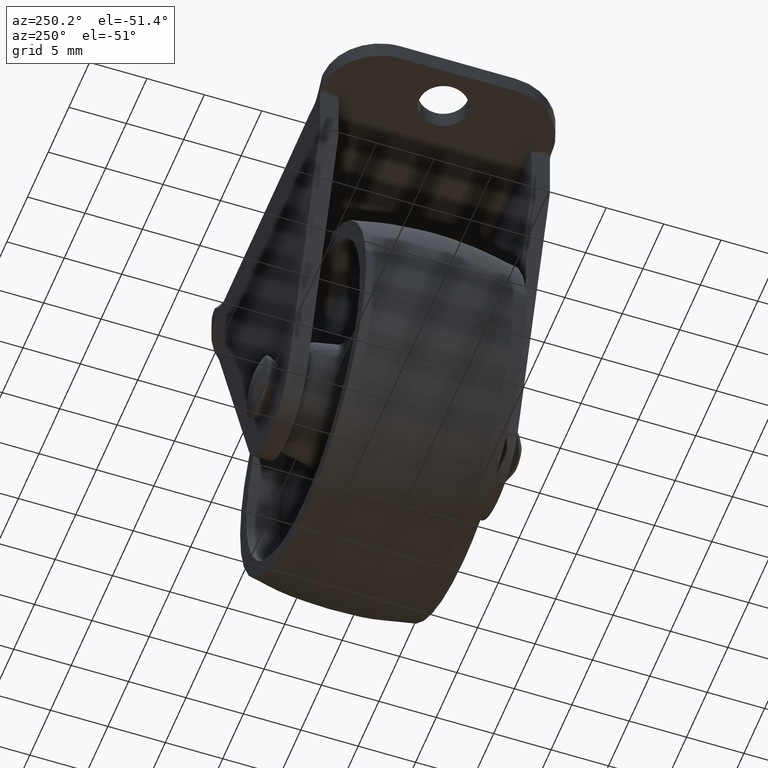
[diagram: clean part render]
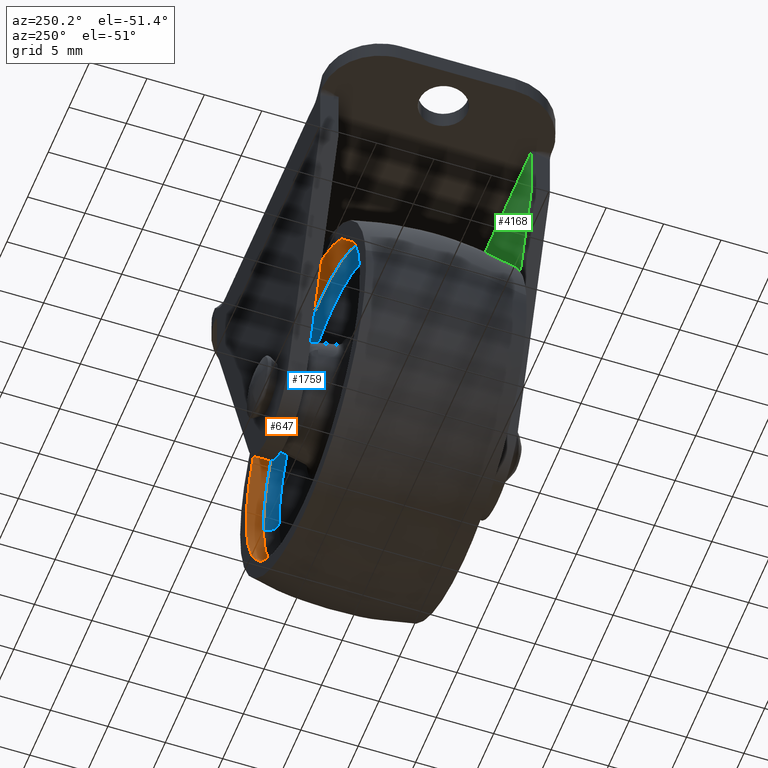
[diagram: same view with three faces highlighted in distinct colors, each labeled with its STEP entity id]
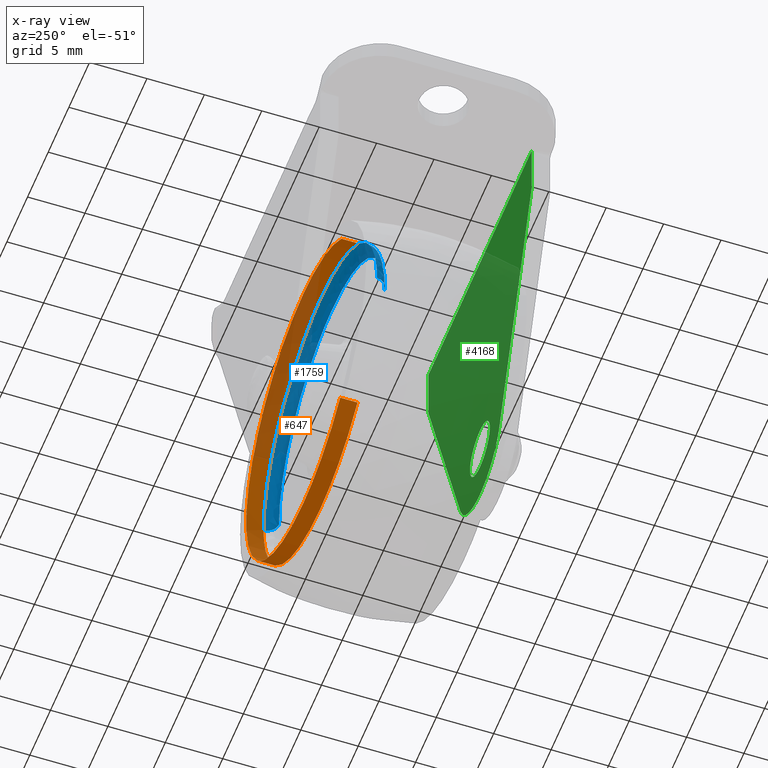
[diagram: x-ray of the same camera — body ghosted, the three highlighted faces saturated]
A machine part, auxiliary view with three faces highlighted in distinct colors.
The next image is the same camera in x-ray (body ghosted, the three faces saturated) — at least one of them is partly hidden behind the body in this view.
Their STEP definitions:

[orange] entity #647 — the highlighted face is a freeform B-spline surface patch.
#500=CARTESIAN_POINT('',(-8.997170283787186,7.037500000000621,-10.397760666823247));
#501=CARTESIAN_POINT('',(0.261949297203739,7.037500000000621,-18.409666135462533));
#502=CARTESIAN_POINT('',(9.289365354715326,7.037500000000621,-10.137563381139200));
#503=CARTESIAN_POINT('',(19.426928735854528,7.037500000000621,-0.848198026423875));
#504=CARTESIAN_POINT('',(10.137563381139200,7.037500000000621,9.289365354715326));
#505=CARTESIAN_POINT('',(0.848198026423875,7.037500000000621,19.426928735854528));
#506=CARTESIAN_POINT('',(-9.289365354715326,7.037500000000621,10.137563381139200));
#507=CARTESIAN_POINT('',(-8.997170283787186,5.461562499974572,-10.397760666823247));
#508=CARTESIAN_POINT('',(0.261949297203739,5.461562499974573,-18.409666135462533));
#509=CARTESIAN_POINT('',(9.289365354715326,5.461562499974572,-10.137563381139200));
#510=CARTESIAN_POINT('',(19.426928735854528,5.461562499974572,-0.848198026423875));
#511=CARTESIAN_POINT('',(10.137563381139200,5.461562499974572,9.289365354715326));
#512=CARTESIAN_POINT('',(0.848198026423875,5.461562499974572,19.426928735854528));
#513=CARTESIAN_POINT('',(-9.289365354715326,5.461562499974572,10.137563381139200));
#521=(BOUNDED_SURFACE()B_SPLINE_SURFACE(2,1,((#500,#507),(#501,#508),(#502,#509),(#503,#510),(#504,#511),(#505,#512),(#506,#513)),.UNSPECIFIED.,.F.,.F.,.U.)B_SPLINE_SURFACE_WITH_KNOTS((3,2,2,3),(2,2),(0.0,20.959206256078598,43.740952186598818,66.522698117119035),(0.0,1.0),.UNSPECIFIED.)GEOMETRIC_REPRESENTATION_ITEM()RATIONAL_B_SPLINE_SURFACE(((0.956886118190660,0.956886118190660),(0.730538238691624,0.730538238691624),(1.0,1.0),(0.707106781186548,0.707106781186548),(1.0,1.0),(0.707106781186548,0.707106781186548),(1.0,1.0)))REPRESENTATION_ITEM('')SURFACE());
#522=CARTESIAN_POINT('',(-8.997169255291485,6.999999999999936,-10.397761556779219));
#523=VERTEX_POINT('',#522);
#524=CARTESIAN_POINT('',(0.0,7.0,-13.750000000000000));
#525=VERTEX_POINT('',#524);
#526=CARTESIAN_POINT('',(-8.997169255291485,6.999999999999937,-10.397761556779216));
#527=CARTESIAN_POINT('',(-5.123086749443563,7.0,-13.749999999999998));
#528=CARTESIAN_POINT('',(0.0,7.0,-13.750000000000000));
#536=(BOUNDED_CURVE()B_SPLINE_CURVE(2,(#526,#527,#528),.UNSPECIFIED.,.F.,.U.)B_SPLINE_CURVE_WITH_KNOTS((3,3),(0.885882134893162,1.0),.UNSPECIFIED.)CURVE()GEOMETRIC_REPRESENTATION_ITEM()RATIONAL_B_SPLINE_CURVE((0.854663299931230,0.866302604658955,1.0))REPRESENTATION_ITEM(''));
#537=EDGE_CURVE('',#523,#525,#536,.T.);
#538=ORIENTED_EDGE('',*,*,#537,.F.);
#539=CARTESIAN_POINT('',(-8.997169267682160,5.500000000000000,-10.397761546057581));
#540=VERTEX_POINT('',#539);
#541=CARTESIAN_POINT('',(-8.997169255291485,6.999999999999936,-10.397761556779219));
#542=CARTESIAN_POINT('',(-8.997169267682160,5.500000000000000,-10.397761546057581));
#543=QUASI_UNIFORM_CURVE('',1,(#541,#542),.UNSPECIFIED.,.F.,.U.);
#544=EDGE_CURVE('',#523,#540,#543,.T.);
#545=ORIENTED_EDGE('',*,*,#544,.T.);
#546=CARTESIAN_POINT('',(0.0,5.500000000000000,-13.750000000000000));
#547=VERTEX_POINT('',#546);
#548=CARTESIAN_POINT('',(-8.997169267682160,5.500000000000000,-10.397761546057584));
#549=CARTESIAN_POINT('',(-5.123086758773605,5.500000000000000,-13.749999999999996));
#550=CARTESIAN_POINT('',(0.0,5.500000000000000,-13.750000000000000));
#558=(BOUNDED_CURVE()B_SPLINE_CURVE(2,(#548,#549,#550),.UNSPECIFIED.,.F.,.U.)B_SPLINE_CURVE_WITH_KNOTS((3,3),(0.885882134713119,1.0),.UNSPECIFIED.)CURVE()GEOMETRIC_REPRESENTATION_ITEM()RATIONAL_B_SPLINE_CURVE((0.854663299894504,0.866302604448022,1.0))REPRESENTATION_ITEM(''));
#559=EDGE_CURVE('',#540,#547,#558,.T.);
#560=ORIENTED_EDGE('',*,*,#559,.T.);
#561=CARTESIAN_POINT('',(13.745657602644849,5.499999999975207,-0.345538812366668));
#562=VERTEX_POINT('',#561);
#563=CARTESIAN_POINT('',(0.0,5.500000000000000,-13.750000000000000));
#564=CARTESIAN_POINT('',(13.408695797443380,5.500000000000000,-13.750000000000000));
#565=CARTESIAN_POINT('',(13.745657602644846,5.499999999975207,-0.345538812366668));
#573=(BOUNDED_CURVE()B_SPLINE_CURVE(2,(#563,#564,#565),.UNSPECIFIED.,.F.,.U.)B_SPLINE_CURVE_WITH_KNOTS((3,3),(0.0,0.245579891769279),.UNSPECIFIED.)CURVE()GEOMETRIC_REPRESENTATION_ITEM()RATIONAL_B_SPLINE_CURVE((1.0,0.712285260095347,0.989826157680381))REPRESENTATION_ITEM(''));
#574=EDGE_CURVE('',#547,#562,#573,.T.);
#575=ORIENTED_EDGE('',*,*,#574,.T.);
#576=CARTESIAN_POINT('',(0.0,5.500000000000000,13.750000000000000));
#577=VERTEX_POINT('',#576);
#578=CARTESIAN_POINT('',(13.745657602644847,5.499999999975207,-0.345538812366668));
#579=CARTESIAN_POINT('',(13.750000000000002,5.500000000000001,-0.172796691717256));
#580=CARTESIAN_POINT('',(13.750000000000000,5.500000000000000,8.173480E-016));
#581=CARTESIAN_POINT('',(13.750000000000000,5.500000000000000,13.750000000000000));
#582=CARTESIAN_POINT('',(0.0,5.500000000000000,13.750000000000000));
#590=(BOUNDED_CURVE()B_SPLINE_CURVE(2,(#578,#579,#580,#581,#582),.UNSPECIFIED.,.F.,.U.)B_SPLINE_CURVE_WITH_KNOTS((3,2,3),(0.245579891769279,0.250000000000000,0.500000000000000),.UNSPECIFIED.)CURVE()GEOMETRIC_REPRESENTATION_ITEM()RATIONAL_B_SPLINE_CURVE((0.989826157680380,0.994821521091201,1.0,0.707106781186547,1.0))REPRESENTATION_ITEM(''));
#591=EDGE_CURVE('',#562,#577,#590,.T.);
#592=ORIENTED_EDGE('',*,*,#591,.T.);
#593=CARTESIAN_POINT('',(-9.289364680869312,5.499999999993278,10.137563998602500));
#594=VERTEX_POINT('',#593);
#595=CARTESIAN_POINT('',(0.0,5.500000000000000,13.750000000000000));
#596=CARTESIAN_POINT('',(-5.347081510797239,5.500000000000000,13.750000000000002));
#597=CARTESIAN_POINT('',(-9.289364680869312,5.499999999993278,10.137563998602495));
#605=(BOUNDED_CURVE()B_SPLINE_CURVE(2,(#595,#596,#597),.UNSPECIFIED.,.F.,.U.)B_SPLINE_CURVE_WITH_KNOTS((3,3),(0.500000000000000,0.618415189015360),.UNSPECIFIED.)CURVE()GEOMETRIC_REPRESENTATION_ITEM()RATIONAL_B_SPLINE_CURVE((1.0,0.861267976531552,0.853959783315100))REPRESENTATION_ITEM(''));
#606=EDGE_CURVE('',#577,#594,#605,.T.);
#607=ORIENTED_EDGE('',*,*,#606,.T.);
#608=CARTESIAN_POINT('',(-9.289364696313719,7.0,10.137563984453040));
#609=VERTEX_POINT('',#608);
#610=CARTESIAN_POINT('',(-9.289364696313719,7.0,10.137563984453040));
#611=CARTESIAN_POINT('',(-9.289364680869312,5.499999999993278,10.137563998602500));
#612=QUASI_UNIFORM_CURVE('',1,(#610,#611),.UNSPECIFIED.,.F.,.U.);
#613=EDGE_CURVE('',#609,#594,#612,.T.);
#614=ORIENTED_EDGE('',*,*,#613,.F.);
#615=CARTESIAN_POINT('',(0.0,7.0,13.750000000000000));
#616=VERTEX_POINT('',#615);
#617=CARTESIAN_POINT('',(0.0,7.0,13.750000000000000));
#618=CARTESIAN_POINT('',(-5.347081534913088,6.999999999999998,13.749999999999998));
#619=CARTESIAN_POINT('',(-9.289364696313719,7.0,10.137563984453042));
#627=(BOUNDED_CURVE()B_SPLINE_CURVE(2,(#617,#618,#619),.UNSPECIFIED.,.F.,.U.)B_SPLINE_CURVE_WITH_KNOTS((3,3),(0.500000000000000,0.618415189475332),.UNSPECIFIED.)CURVE()GEOMETRIC_REPRESENTATION_ITEM()RATIONAL_B_SPLINE_CURVE((1.0,0.861267975992661,0.853959783258324))REPRESENTATION_ITEM(''));
#628=EDGE_CURVE('',#616,#609,#627,.T.);
#629=ORIENTED_EDGE('',*,*,#628,.F.);
#630=CARTESIAN_POINT('',(0.0,7.0,-13.750000000000000));
#631=CARTESIAN_POINT('',(13.750000000000000,6.999999999999999,-13.750000000000000));
#632=CARTESIAN_POINT('',(13.750000000000000,7.0,8.173480E-016));
#633=CARTESIAN_POINT('',(13.750000000000000,6.999999999999999,13.750000000000000));
#634=CARTESIAN_POINT('',(0.0,7.0,13.750000000000000));
#642=(BOUNDED_CURVE()B_SPLINE_CURVE(2,(#630,#631,#632,#633,#634),.UNSPECIFIED.,.F.,.U.)B_SPLINE_CURVE_WITH_KNOTS((3,2,3),(0.0,0.250000000000000,0.500000000000000),.UNSPECIFIED.)CURVE()GEOMETRIC_REPRESENTATION_ITEM()RATIONAL_B_SPLINE_CURVE((1.0,0.707106781186547,1.0,0.707106781186547,1.0))REPRESENTATION_ITEM(''));
#643=EDGE_CURVE('',#525,#616,#642,.T.);
#644=ORIENTED_EDGE('',*,*,#643,.F.);
#645=EDGE_LOOP('',(#538,#545,#560,#575,#592,#607,#614,#629,#644));
#646=FACE_OUTER_BOUND('',#645,.T.);
#647=ADVANCED_FACE('',(#646),#521,.F.);

[blue] entity #1759 — the highlighted face is a freeform B-spline surface patch.
#561=CARTESIAN_POINT('',(13.745657602644849,5.499999999975207,-0.345538812366668));
#562=VERTEX_POINT('',#561);
#576=CARTESIAN_POINT('',(0.0,5.500000000000000,13.750000000000000));
#577=VERTEX_POINT('',#576);
#578=CARTESIAN_POINT('',(13.745657602644847,5.499999999975207,-0.345538812366668));
#579=CARTESIAN_POINT('',(13.750000000000002,5.500000000000001,-0.172796691717256));
#580=CARTESIAN_POINT('',(13.750000000000000,5.500000000000000,8.173480E-016));
#581=CARTESIAN_POINT('',(13.750000000000000,5.500000000000000,13.750000000000000));
#582=CARTESIAN_POINT('',(0.0,5.500000000000000,13.750000000000000));
#590=(BOUNDED_CURVE()B_SPLINE_CURVE(2,(#578,#579,#580,#581,#582),.UNSPECIFIED.,.F.,.U.)B_SPLINE_CURVE_WITH_KNOTS((3,2,3),(0.245579891769279,0.250000000000000,0.500000000000000),.UNSPECIFIED.)CURVE()GEOMETRIC_REPRESENTATION_ITEM()RATIONAL_B_SPLINE_CURVE((0.989826157680380,0.994821521091201,1.0,0.707106781186547,1.0))REPRESENTATION_ITEM(''));
#591=EDGE_CURVE('',#562,#577,#590,.T.);
#593=CARTESIAN_POINT('',(-9.289364680869312,5.499999999993278,10.137563998602500));
#594=VERTEX_POINT('',#593);
#595=CARTESIAN_POINT('',(0.0,5.500000000000000,13.750000000000000));
#596=CARTESIAN_POINT('',(-5.347081510797239,5.500000000000000,13.750000000000002));
#597=CARTESIAN_POINT('',(-9.289364680869312,5.499999999993278,10.137563998602495));
#605=(BOUNDED_CURVE()B_SPLINE_CURVE(2,(#595,#596,#597),.UNSPECIFIED.,.F.,.U.)B_SPLINE_CURVE_WITH_KNOTS((3,3),(0.500000000000000,0.618415189015360),.UNSPECIFIED.)CURVE()GEOMETRIC_REPRESENTATION_ITEM()RATIONAL_B_SPLINE_CURVE((1.0,0.861267976531552,0.853959783315100))REPRESENTATION_ITEM(''));
#606=EDGE_CURVE('',#577,#594,#605,.T.);
#682=CARTESIAN_POINT('',(-13.745657602644849,5.499999999975207,0.345538812366669));
#683=VERTEX_POINT('',#682);
#684=CARTESIAN_POINT('',(-9.289364680869312,5.499999999993278,10.137563998602495));
#685=CARTESIAN_POINT('',(-13.598771481832303,5.499999999986015,6.188721259281214));
#686=CARTESIAN_POINT('',(-13.745657602644846,5.499999999975207,0.345538812366669));
#694=(BOUNDED_CURVE()B_SPLINE_CURVE(2,(#684,#685,#686),.UNSPECIFIED.,.F.,.U.)B_SPLINE_CURVE_WITH_KNOTS((3,3),(0.618415189015359,0.745579891769279),.UNSPECIFIED.)CURVE()GEOMETRIC_REPRESENTATION_ITEM()RATIONAL_B_SPLINE_CURVE((0.853959783315100,0.846111599093414,0.989826157680381))REPRESENTATION_ITEM(''));
#695=EDGE_CURVE('',#594,#683,#694,.T.);
#1634=CARTESIAN_POINT('',(-12.745973416096410,4.500000000000001,0.320408717120054));
#1635=VERTEX_POINT('',#1634);
#1636=CARTESIAN_POINT('',(-13.745657602644854,5.499999999975208,0.345538812366669));
#1637=CARTESIAN_POINT('',(-13.745657602595799,4.500000005477886,0.345538812344645));
#1638=CARTESIAN_POINT('',(-12.745973416096408,4.500000000000001,0.320408717120054));
#1646=(BOUNDED_CURVE()B_SPLINE_CURVE(2,(#1636,#1637,#1638),.UNSPECIFIED.,.F.,.U.)B_SPLINE_CURVE_WITH_KNOTS((3,3),(-1.723441281933716,-0.263586884597238),.UNSPECIFIED.)CURVE()GEOMETRIC_REPRESENTATION_ITEM()RATIONAL_B_SPLINE_CURVE((0.883897567120671,0.626638728245773,0.888510407028570))REPRESENTATION_ITEM(''));
#1647=EDGE_CURVE('',#683,#1635,#1646,.T.);
#1666=CARTESIAN_POINT('',(12.745973416096410,4.500000000000000,-0.320408717120054));
#1667=VERTEX_POINT('',#1666);
#1681=CARTESIAN_POINT('',(13.745657602644856,5.499999999975208,-0.345538812366668));
#1682=CARTESIAN_POINT('',(13.745657602595797,4.500000005477884,-0.345538812344643));
#1683=CARTESIAN_POINT('',(12.745973416096410,4.500000000000000,-0.320408717120054));
#1691=(BOUNDED_CURVE()B_SPLINE_CURVE(2,(#1681,#1682,#1683),.UNSPECIFIED.,.F.,.U.)B_SPLINE_CURVE_WITH_KNOTS((3,3),(-1.723441281933715,-0.263586884597236),.UNSPECIFIED.)CURVE()GEOMETRIC_REPRESENTATION_ITEM()RATIONAL_B_SPLINE_CURVE((0.883897567120671,0.626638728245773,0.888510407028570))REPRESENTATION_ITEM(''));
#1692=EDGE_CURVE('',#562,#1667,#1691,.T.);
#1699=CARTESIAN_POINT('',(13.743224677086753,5.569724209736901,-0.345477653379738));
#1700=CARTESIAN_POINT('',(14.088702330466486,5.569724209736900,13.397747023707007));
#1701=CARTESIAN_POINT('',(0.345477653379739,5.569724209736901,13.743224677086753));
#1702=CARTESIAN_POINT('',(-13.397747023707005,5.569724209736900,14.088702330466489));
#1703=CARTESIAN_POINT('',(-13.743224677086753,5.569724209736901,0.345477653379739));
#1704=CARTESIAN_POINT('',(13.823372361373911,4.422663705030895,-0.347492408616732));
#1705=CARTESIAN_POINT('',(14.170864769990647,4.422663705030896,13.475879952757179));
#1706=CARTESIAN_POINT('',(0.347492408616733,4.422663705030895,13.823372361373911));
#1707=CARTESIAN_POINT('',(-13.475879952757177,4.422663705030896,14.170864769990647));
#1708=CARTESIAN_POINT('',(-13.823372361373911,4.422663705030895,0.347492408616734));
#1709=CARTESIAN_POINT('',(12.676644214484067,4.502407686060150,-0.318665917122890));
#1710=CARTESIAN_POINT('',(12.995310131606958,4.502407686060152,12.357978297361173));
#1711=CARTESIAN_POINT('',(0.318665917122891,4.502407686060150,12.676644214484067));
#1712=CARTESIAN_POINT('',(-12.357978297361173,4.502407686060152,12.995310131606958));
#1713=CARTESIAN_POINT('',(-12.676644214484067,4.502407686060150,0.318665917122892));
#1721=(BOUNDED_SURFACE()B_SPLINE_SURFACE(2,2,((#1699,#1704,#1709),(#1700,#1705,#1710),(#1701,#1706,#1711),(#1702,#1707,#1712),(#1703,#1708,#1713)),.UNSPECIFIED.,.F.,.F.,.U.)B_SPLINE_SURFACE_WITH_KNOTS((3,2,3),(3,3),(0.0,22.777713654033590,45.555427308067173),(0.0,1.822370992803818),.UNSPECIFIED.)GEOMETRIC_REPRESENTATION_ITEM()RATIONAL_B_SPLINE_SURFACE(((0.910892951782548,0.599412819563648,0.915966843402862),(0.644098583140471,0.423848869443604,0.647686366312201),(0.910892951782548,0.599412819563648,0.915966843402862),(0.644098583140471,0.423848869443604,0.647686366312201),(0.910892951782548,0.599412819563648,0.915966843402862)))REPRESENTATION_ITEM('')SURFACE());
#1722=ORIENTED_EDGE('',*,*,#606,.F.);
#1723=ORIENTED_EDGE('',*,*,#591,.F.);
#1724=ORIENTED_EDGE('',*,*,#1692,.T.);
#1725=CARTESIAN_POINT('',(0.0,4.500000000000000,12.750000000000000));
#1726=VERTEX_POINT('',#1725);
#1727=CARTESIAN_POINT('',(12.745973416096417,4.500000000000001,-0.320408717120054));
#1728=CARTESIAN_POINT('',(12.750000000000005,4.500000000000001,-0.160229659721831));
#1729=CARTESIAN_POINT('',(12.750000000000000,4.500000000000000,8.173480E-016));
#1730=CARTESIAN_POINT('',(12.749999999999998,4.500000000000000,12.749999999999998));
#1731=CARTESIAN_POINT('',(0.0,4.500000000000000,12.750000000000000));
#1739=(BOUNDED_CURVE()B_SPLINE_CURVE(2,(#1727,#1728,#1729,#1730,#1731),.UNSPECIFIED.,.F.,.U.)B_SPLINE_CURVE_WITH_KNOTS((3,2,3),(0.245579891765726,0.250000000000000,0.500000000000000),.UNSPECIFIED.)CURVE()GEOMETRIC_REPRESENTATION_ITEM()RATIONAL_B_SPLINE_CURVE((0.989826157672350,0.994821521087038,1.0,0.707106781186548,1.0))REPRESENTATION_ITEM(''));
#1740=EDGE_CURVE('',#1667,#1726,#1739,.T.);
#1741=ORIENTED_EDGE('',*,*,#1740,.T.);
#1742=CARTESIAN_POINT('',(0.0,4.500000000000000,12.750000000000000));
#1743=CARTESIAN_POINT('',(-12.433517921013156,4.500000000000000,12.750000000000000));
#1744=CARTESIAN_POINT('',(-12.745973416096417,4.500000000000001,0.320408717120054));
#1752=(BOUNDED_CURVE()B_SPLINE_CURVE(2,(#1742,#1743,#1744),.UNSPECIFIED.,.F.,.U.)B_SPLINE_CURVE_WITH_KNOTS((3,3),(0.500000000000000,0.745579891765726),.UNSPECIFIED.)CURVE()GEOMETRIC_REPRESENTATION_ITEM()RATIONAL_B_SPLINE_CURVE((1.0,0.712285260099509,0.989826157672351))REPRESENTATION_ITEM(''));
#1753=EDGE_CURVE('',#1726,#1635,#1752,.T.);
#1754=ORIENTED_EDGE('',*,*,#1753,.T.);
#1755=ORIENTED_EDGE('',*,*,#1647,.F.);
#1756=ORIENTED_EDGE('',*,*,#695,.F.);
#1757=EDGE_LOOP('',(#1722,#1723,#1724,#1741,#1754,#1755,#1756));
#1758=FACE_OUTER_BOUND('',#1757,.T.);
#1759=ADVANCED_FACE('',(#1758),#1721,.F.);

[green] entity #4168 — the highlighted face is a freeform B-spline surface patch.
#2635=CARTESIAN_POINT('',(0.0,-8.400000000000000,-2.400000000000000));
#2636=VERTEX_POINT('',#2635);
#2637=CARTESIAN_POINT('',(-2.381438913178190,-8.400000000000000,-0.297907205016393));
#2638=VERTEX_POINT('',#2637);
#2639=CARTESIAN_POINT('',(0.0,-8.400000000000000,-2.400000000000000));
#2640=CARTESIAN_POINT('',(-2.118476640316069,-8.400000000000000,-2.400000000000000));
#2641=CARTESIAN_POINT('',(-2.381438913178190,-8.400000000000000,-0.297907205016393));
#2649=(BOUNDED_CURVE()B_SPLINE_CURVE(2,(#2639,#2640,#2641),.UNSPECIFIED.,.F.,.U.)B_SPLINE_CURVE_WITH_KNOTS((3,3),(0.500000000000000,0.728526071025785),.UNSPECIFIED.)CURVE()GEOMETRIC_REPRESENTATION_ITEM()RATIONAL_B_SPLINE_CURVE((1.0,0.732265053897864,0.954005430267900))REPRESENTATION_ITEM(''));
#2650=EDGE_CURVE('',#2636,#2638,#2649,.T.);
#2691=CARTESIAN_POINT('',(2.399908615353053,-8.400000000000000,0.020943685305797));
#2692=VERTEX_POINT('',#2691);
#2698=CARTESIAN_POINT('',(2.399908615353053,-8.400000000000000,0.020943685305797));
#2699=CARTESIAN_POINT('',(2.400000000000000,-8.400000000000000,0.010472042079390));
#2700=CARTESIAN_POINT('',(2.400000000000000,-8.400000000000000,0.0));
#2701=CARTESIAN_POINT('',(2.400000000000000,-8.400000000000000,-2.400000000000000));
#2702=CARTESIAN_POINT('',(0.0,-8.400000000000000,-2.400000000000000));
#2710=(BOUNDED_CURVE()B_SPLINE_CURVE(2,(#2698,#2699,#2700,#2701,#2702),.UNSPECIFIED.,.F.,.U.)B_SPLINE_CURVE_WITH_KNOTS((3,2,3),(0.248460105648910,0.250000000000000,0.500000000000000),.UNSPECIFIED.)CURVE()GEOMETRIC_REPRESENTATION_ITEM()RATIONAL_B_SPLINE_CURVE((0.996414028063139,0.998195901547506,1.0,0.707106781186547,1.0))REPRESENTATION_ITEM(''));
#2711=EDGE_CURVE('',#2692,#2636,#2710,.T.);
#2738=CARTESIAN_POINT('',(0.0,-8.400000000000000,2.400000000000000));
#2739=VERTEX_POINT('',#2738);
#2740=CARTESIAN_POINT('',(-2.381438913178190,-8.400000000000000,-0.297907205016393));
#2741=CARTESIAN_POINT('',(-2.400000000000000,-8.400000000000000,-0.149531826105479));
#2742=CARTESIAN_POINT('',(-2.400000000000000,-8.400000000000000,0.0));
#2743=CARTESIAN_POINT('',(-2.400000000000000,-8.400000000000000,2.400000000000000));
#2744=CARTESIAN_POINT('',(0.0,-8.400000000000000,2.400000000000000));
#2752=(BOUNDED_CURVE()B_SPLINE_CURVE(2,(#2740,#2741,#2742,#2743,#2744),.UNSPECIFIED.,.F.,.U.)B_SPLINE_CURVE_WITH_KNOTS((3,2,3),(0.728526071025786,0.750000000000000,1.0),.UNSPECIFIED.)CURVE()GEOMETRIC_REPRESENTATION_ITEM()RATIONAL_B_SPLINE_CURVE((0.954005430267902,0.974841727288684,1.0,0.707106781186547,1.0))REPRESENTATION_ITEM(''));
#2753=EDGE_CURVE('',#2638,#2739,#2752,.T.);
#2755=CARTESIAN_POINT('',(0.0,-8.400000000000000,2.400000000000000));
#2756=CARTESIAN_POINT('',(2.379146905210438,-8.400000000000002,2.400000000000000));
#2757=CARTESIAN_POINT('',(2.399908615353053,-8.400000000000000,0.020943685305797));
#2765=(BOUNDED_CURVE()B_SPLINE_CURVE(2,(#2755,#2756,#2757),.UNSPECIFIED.,.F.,.U.)B_SPLINE_CURVE_WITH_KNOTS((3,3),(0.0,0.248460105648910),.UNSPECIFIED.)CURVE()GEOMETRIC_REPRESENTATION_ITEM()RATIONAL_B_SPLINE_CURVE((1.0,0.708910879639041,0.996414028063139))REPRESENTATION_ITEM(''));
#2766=EDGE_CURVE('',#2739,#2692,#2765,.T.);
#3365=CARTESIAN_POINT('',(-12.500000000000000,-8.400000000000000,24.400001000000000));
#3366=VERTEX_POINT('',#3365);
#3528=CARTESIAN_POINT('',(12.500000000000000,-8.400000000000000,24.400000999999950));
#3529=VERTEX_POINT('',#3528);
#4017=CARTESIAN_POINT('',(4.717456999999799,-8.400000000000000,-2.656985999999905));
#4018=VERTEX_POINT('',#4017);
#4019=CARTESIAN_POINT('',(12.500000000000000,-8.400000000000000,19.500000000000000));
#4020=VERTEX_POINT('',#4019);
#4021=CARTESIAN_POINT('',(4.717456999999799,-8.400000000000000,-2.656985999999905));
#4022=CARTESIAN_POINT('',(12.500000000000000,-8.400000000000000,19.500000000000000));
#4023=QUASI_UNIFORM_CURVE('',1,(#4021,#4022),.UNSPECIFIED.,.F.,.U.);
#4024=EDGE_CURVE('',#4018,#4020,#4023,.T.);
#4084=CARTESIAN_POINT('',(-4.717459000000000,-8.400000000000000,-2.656979000000085));
#4085=VERTEX_POINT('',#4084);
#4091=CARTESIAN_POINT('',(4.717456999999799,-8.400000000000000,-2.656985999999905));
#4092=CARTESIAN_POINT('',(3.543236966923916,-8.400000000000000,-6.000002628817205));
#4093=CARTESIAN_POINT('',(-0.000003480268287,-8.400000000000000,-5.999999999998626));
#4094=CARTESIAN_POINT('',(-3.543243927460488,-8.400000000000000,-5.999997371180048));
#4095=CARTESIAN_POINT('',(-4.717458999999992,-8.400000000000000,-2.656979000000081));
#4103=(BOUNDED_CURVE()B_SPLINE_CURVE(2,(#4091,#4092,#4093,#4094,#4095),.UNSPECIFIED.,.F.,.U.)B_SPLINE_CURVE_WITH_KNOTS((3,2,3),(0.0,0.500000000000000,1.0),.UNSPECIFIED.)CURVE()GEOMETRIC_REPRESENTATION_ITEM()RATIONAL_B_SPLINE_CURVE((1.0,0.815903339784114,1.0,0.815903339784114,1.0))REPRESENTATION_ITEM(''));
#4104=EDGE_CURVE('',#4018,#4085,#4103,.T.);
#4114=CARTESIAN_POINT('',(-12.500000000000000,-8.400000000000000,19.500001999999999));
#4115=VERTEX_POINT('',#4114);
#4116=CARTESIAN_POINT('',(-12.500000000000000,-8.400000000000000,19.500001999999999));
#4117=CARTESIAN_POINT('',(-4.717459000000000,-8.400000000000000,-2.656979000000085));
#4118=QUASI_UNIFORM_CURVE('',1,(#4116,#4117),.UNSPECIFIED.,.F.,.U.);
#4119=EDGE_CURVE('',#4115,#4085,#4118,.T.);
#4137=CARTESIAN_POINT('',(-13.748749951545150,-8.400000000000000,-7.518479991027056));
#4138=CARTESIAN_POINT('',(-13.748749951545150,-8.400000000000000,25.918481806420381));
#4139=CARTESIAN_POINT('',(13.748750622097401,-8.400000000000000,-7.518479991027056));
#4140=CARTESIAN_POINT('',(13.748750622097401,-8.400000000000000,25.918481806420381));
#4141=B_SPLINE_SURFACE_WITH_KNOTS('',1,1,((#4137,#4139),(#4138,#4140)),.UNSPECIFIED.,.F.,.F.,.U.,(2,2),(2,2),(0.0,33.436961797447431),(0.0,27.497500573642551),.UNSPECIFIED.);
#4142=ORIENTED_EDGE('',*,*,#4024,.F.);
#4143=ORIENTED_EDGE('',*,*,#4104,.T.);
#4144=ORIENTED_EDGE('',*,*,#4119,.F.);
#4145=CARTESIAN_POINT('',(-12.500000000000000,-8.400000000000000,19.500001999999999));
#4146=CARTESIAN_POINT('',(-12.500000000000000,-8.400000000000000,24.400001000000000));
#4147=QUASI_UNIFORM_CURVE('',1,(#4145,#4146),.UNSPECIFIED.,.F.,.U.);
#4148=EDGE_CURVE('',#4115,#3366,#4147,.T.);
#4149=ORIENTED_EDGE('',*,*,#4148,.T.);
#4150=CARTESIAN_POINT('',(12.500000000000000,-8.400000000000000,24.400000999999950));
#4151=CARTESIAN_POINT('',(-12.500000000000000,-8.400000000000000,24.400001000000000));
#4152=QUASI_UNIFORM_CURVE('',1,(#4150,#4151),.UNSPECIFIED.,.F.,.U.);
#4153=EDGE_CURVE('',#3529,#3366,#4152,.T.);
#4154=ORIENTED_EDGE('',*,*,#4153,.F.);
#4155=CARTESIAN_POINT('',(12.500000000000000,-8.400000000000000,19.500000000000000));
#4156=CARTESIAN_POINT('',(12.500000000000000,-8.400000000000000,24.400000999999950));
#4157=QUASI_UNIFORM_CURVE('',1,(#4155,#4156),.UNSPECIFIED.,.F.,.U.);
#4158=EDGE_CURVE('',#4020,#3529,#4157,.T.);
#4159=ORIENTED_EDGE('',*,*,#4158,.F.);
#4160=EDGE_LOOP('',(#4142,#4143,#4144,#4149,#4154,#4159));
#4161=FACE_OUTER_BOUND('',#4160,.T.);
#4162=ORIENTED_EDGE('',*,*,#2766,.F.);
#4163=ORIENTED_EDGE('',*,*,#2753,.F.);
#4164=ORIENTED_EDGE('',*,*,#2650,.F.);
#4165=ORIENTED_EDGE('',*,*,#2711,.F.);
#4166=EDGE_LOOP('',(#4162,#4163,#4164,#4165));
#4167=FACE_BOUND('',#4166,.T.);
#4168=ADVANCED_FACE('',(#4161,#4167),#4141,.T.);